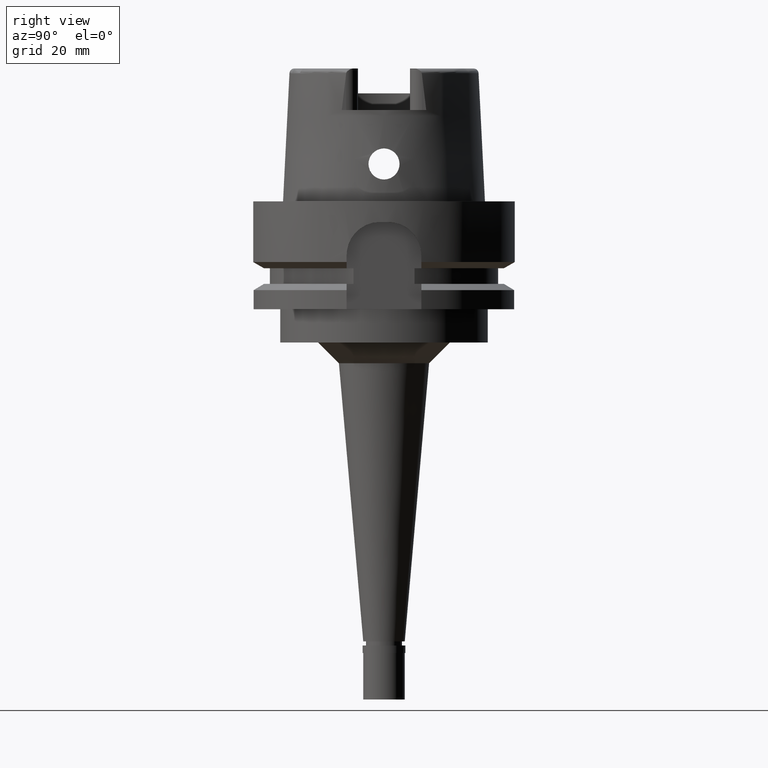
[diagram: clean part render]
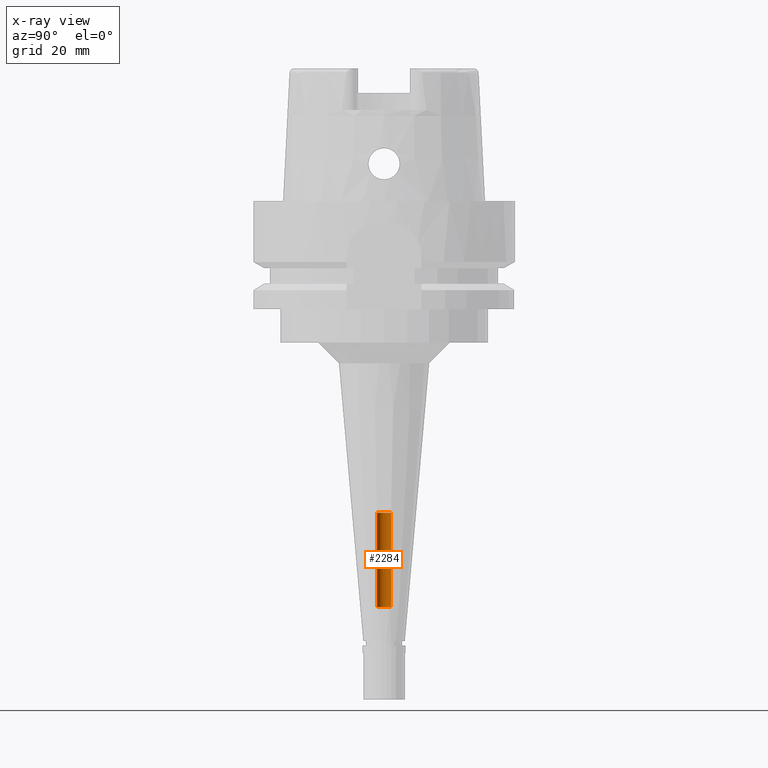
[diagram: x-ray — body ghosted, one internal face saturated and labeled with its STEP entity id]
A machine part, right view, then the same camera in x-ray: the body is ghosted and one INTERNAL B-rep face — a face not visible from any outside direction — is saturated and labeled: STEP entity #2284.
In plain terms, the highlighted cylindrical surface (edge-blend (fillet) strip) has radius 1.7 mm, axis along (0, 0, -1).
Its self-contained STEP definition (entity closure, byte-faithful):
#371 = CARTESIAN_POINT ( 'NONE',  ( 0.0000000000000000000, 1.707341335030999953E-14, -97.79999999999999716 ) ) ;
#416 = EDGE_CURVE ( 'NONE', #1235, #3718, #929, .T. ) ;
#796 = EDGE_LOOP ( 'NONE', ( #3830, #4813, #5248, #4382 ) ) ;
#846 = LINE ( 'NONE', #4231, #1995 ) ;
#888 = CARTESIAN_POINT ( 'NONE',  ( 0.0000000000000000000, -1.699999999999999956, -97.79999999999999716 ) ) ;
#929 = CIRCLE ( 'NONE', #3772, 1.699999999999999956 ) ;
#969 = DIRECTION ( 'NONE',  ( 0.0000000000000000000, 1.000000000000000000, 0.0000000000000000000 ) ) ;
#1235 = VERTEX_POINT ( 'NONE', #888 ) ;
#1306 = CARTESIAN_POINT ( 'NONE',  ( 0.0000000000000000000, 1.699999999999999956, -97.79999999999999716 ) ) ;
#1421 = VERTEX_POINT ( 'NONE', #4051 ) ;
#1632 = DIRECTION ( 'NONE',  ( 0.0000000000000000000, -1.000000000000000000, 0.0000000000000000000 ) ) ;
#1995 = VECTOR ( 'NONE', #2136, 1000.000000000000000 ) ;
#2136 = DIRECTION ( 'NONE',  ( 0.0000000000000000000, 0.0000000000000000000, 1.000000000000000000 ) ) ;
#2283 = EDGE_CURVE ( 'NONE', #1235, #1421, #846, .T. ) ;
#2284 = ADVANCED_FACE ( 'NONE', ( #2979 ), #3798, .F. ) ;
#2432 = CIRCLE ( 'NONE', #3153, 1.699999999999999956 ) ;
#2565 = CARTESIAN_POINT ( 'NONE',  ( 0.0000000000000000000, 1.707341335030999953E-14, -75.00000000000000000 ) ) ;
#2979 = FACE_OUTER_BOUND ( 'NONE', #796, .T. ) ;
#2984 = DIRECTION ( 'NONE',  ( 0.0000000000000000000, 0.0000000000000000000, -1.000000000000000000 ) ) ;
#3053 = LINE ( 'NONE', #3475, #4196 ) ;
#3148 = EDGE_CURVE ( 'NONE', #5121, #1421, #2432, .T. ) ;
#3153 = AXIS2_PLACEMENT_3D ( 'NONE', #2565, #4262, #969 ) ;
#3285 = DIRECTION ( 'NONE',  ( 0.0000000000000000000, 0.0000000000000000000, -1.000000000000000000 ) ) ;
#3426 = AXIS2_PLACEMENT_3D ( 'NONE', #4585, #2984, #4611 ) ;
#3475 = CARTESIAN_POINT ( 'NONE',  ( 0.0000000000000000000, 1.699999999999999956, -97.79999999999999716 ) ) ;
#3718 = VERTEX_POINT ( 'NONE', #1306 ) ;
#3772 = AXIS2_PLACEMENT_3D ( 'NONE', #371, #3285, #1632 ) ;
#3798 = CYLINDRICAL_SURFACE ( 'NONE', #3426, 1.699999999999999956 ) ;
#3830 = ORIENTED_EDGE ( 'NONE', *, *, #3148, .T. ) ;
#3985 = EDGE_CURVE ( 'NONE', #3718, #5121, #3053, .T. ) ;
#4000 = DIRECTION ( 'NONE',  ( 0.0000000000000000000, 0.0000000000000000000, 1.000000000000000000 ) ) ;
#4051 = CARTESIAN_POINT ( 'NONE',  ( 0.0000000000000000000, -1.699999999999999956, -75.00000000000000000 ) ) ;
#4196 = VECTOR ( 'NONE', #4000, 1000.000000000000000 ) ;
#4231 = CARTESIAN_POINT ( 'NONE',  ( 0.0000000000000000000, -1.699999999999999956, -97.79999999999999716 ) ) ;
#4262 = DIRECTION ( 'NONE',  ( 0.0000000000000000000, 0.0000000000000000000, 1.000000000000000000 ) ) ;
#4382 = ORIENTED_EDGE ( 'NONE', *, *, #3985, .T. ) ;
#4585 = CARTESIAN_POINT ( 'NONE',  ( 0.0000000000000000000, 1.707341335030999953E-14, 39.41499999999999915 ) ) ;
#4611 = DIRECTION ( 'NONE',  ( 0.0000000000000000000, -1.000000000000000000, 0.0000000000000000000 ) ) ;
#4679 = CARTESIAN_POINT ( 'NONE',  ( 0.0000000000000000000, 1.699999999999999956, -75.00000000000000000 ) ) ;
#4813 = ORIENTED_EDGE ( 'NONE', *, *, #2283, .F. ) ;
#5121 = VERTEX_POINT ( 'NONE', #4679 ) ;
#5248 = ORIENTED_EDGE ( 'NONE', *, *, #416, .T. ) ;